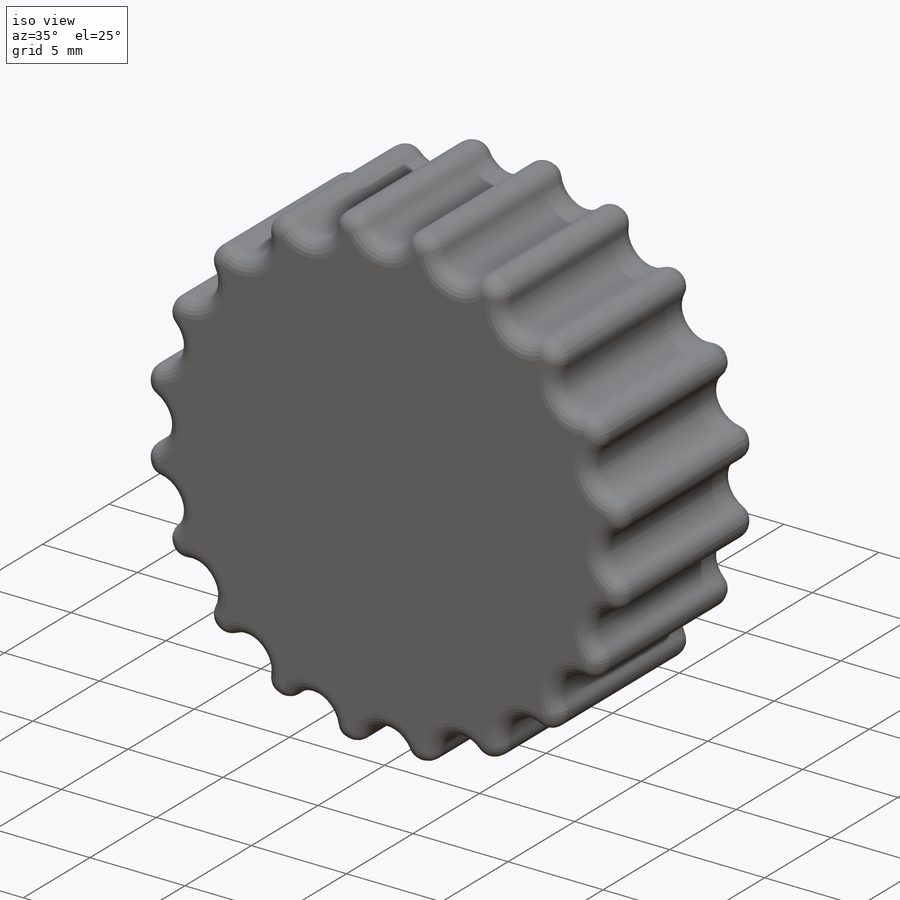
[diagram: iso view]
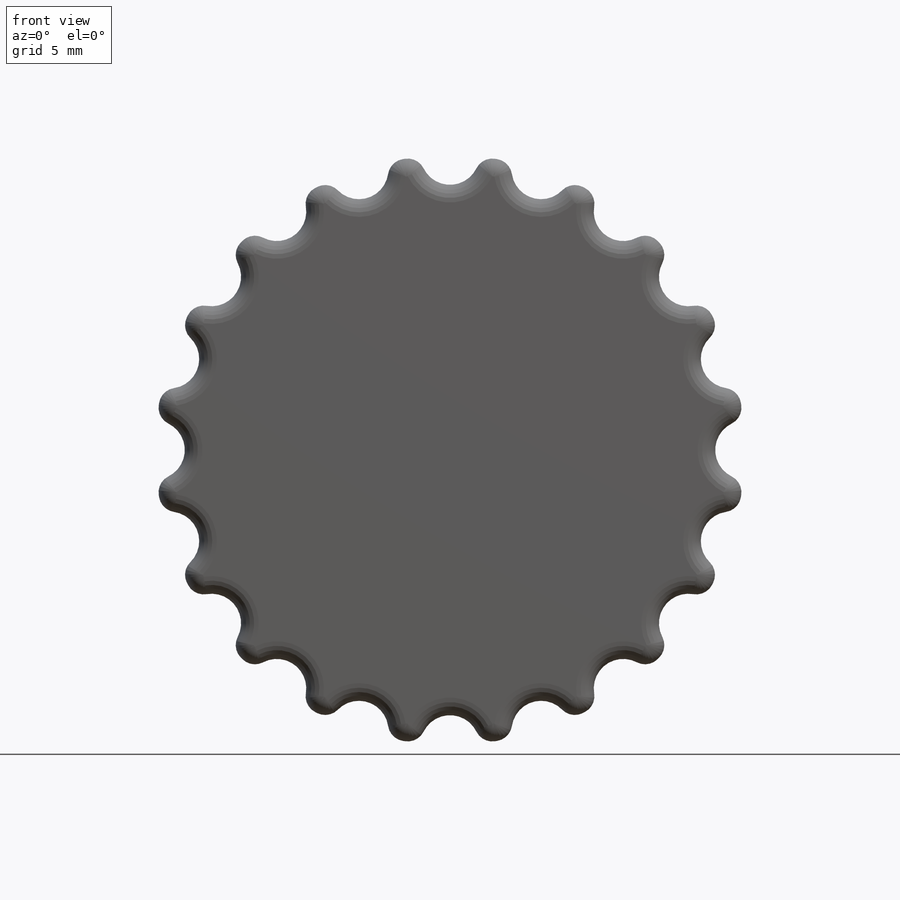
[diagram: front view]
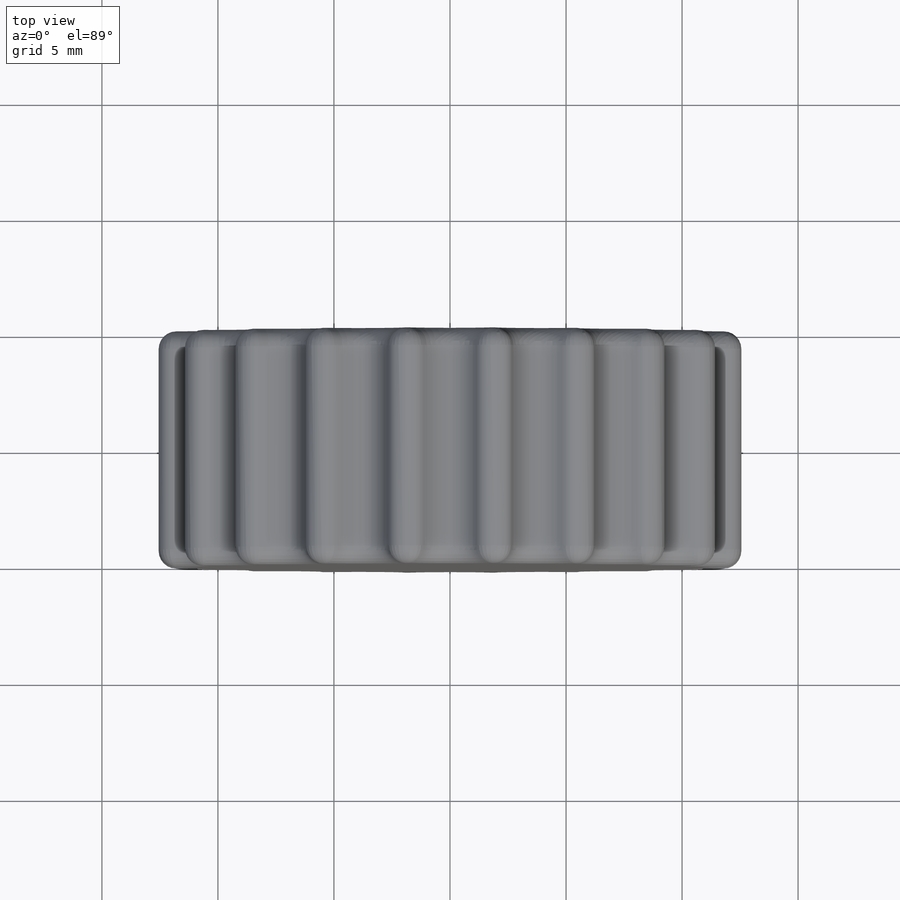
[diagram: top view]
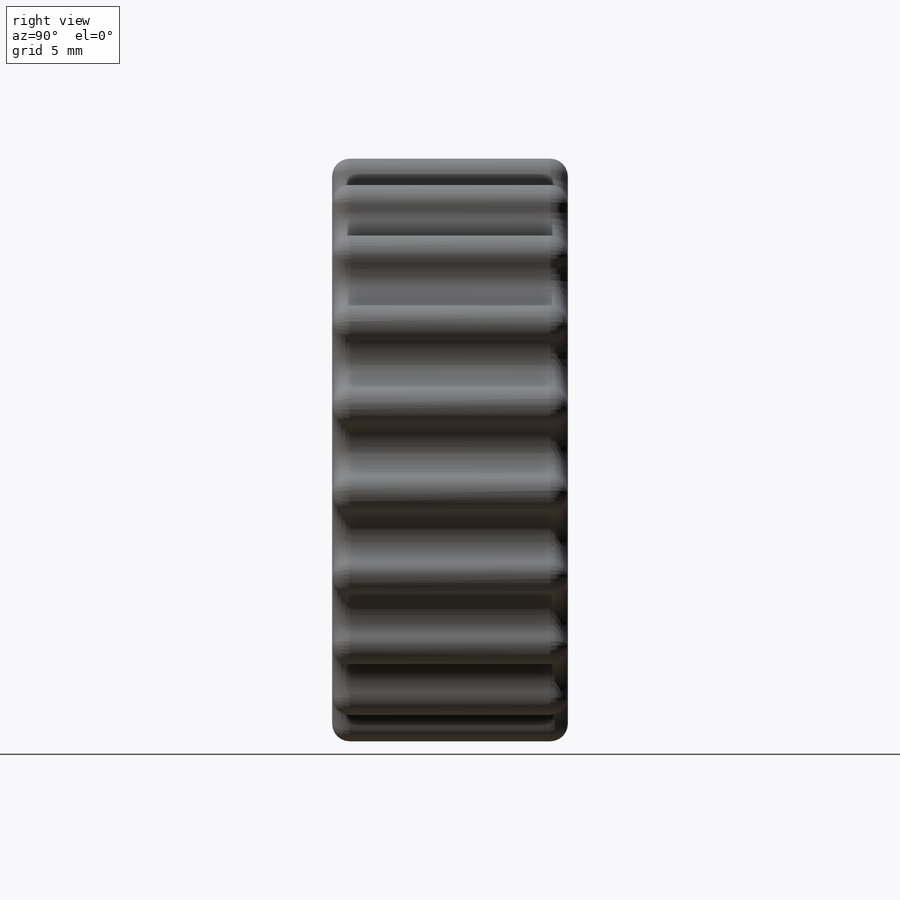
[diagram: right view]
SOLIDWORKS PART (.sldprt)
format: sldprt  version: not decoded by parser v0  size: 819,712 bytes
history: native  units: mm
features: sketch x3, fillet x3, extrude x2, material x1, cut_extrude x1 (+13 scaffold rows collapsed)
feature tree (23):
  scaffold x13  (default folders/planes/origin — collapsed)
  material  "Material <not specified>"
  sketch  "Sketch1"  dims[D1=~12.974151mm]
  extrude  "Boss-Extrude1"  Depth=8.89mm
  sketch  "Sketch2"
  extrude  "Boss-Extrude2"  Depth=1.27mm
  sketch  "Sketch10"  dims[c1.D1=~1.339573mm c2.D1=20.0]
  cut_extrude  "Cut-Extrude3"  Depth=13.97mm
  fillet  "Fillet3"  Radius=0.762mm
  fillet  "Fillet4"  Radius=0.762mm
  fillet  "Fillet5"  Radius=0.508mm
decode coverage: 8 of 9 modeling features carry decoded parameters
note: ~ marks probable driven/reference dimensions
note: suppression state not decoded; provenance and decode notes live in map.json
